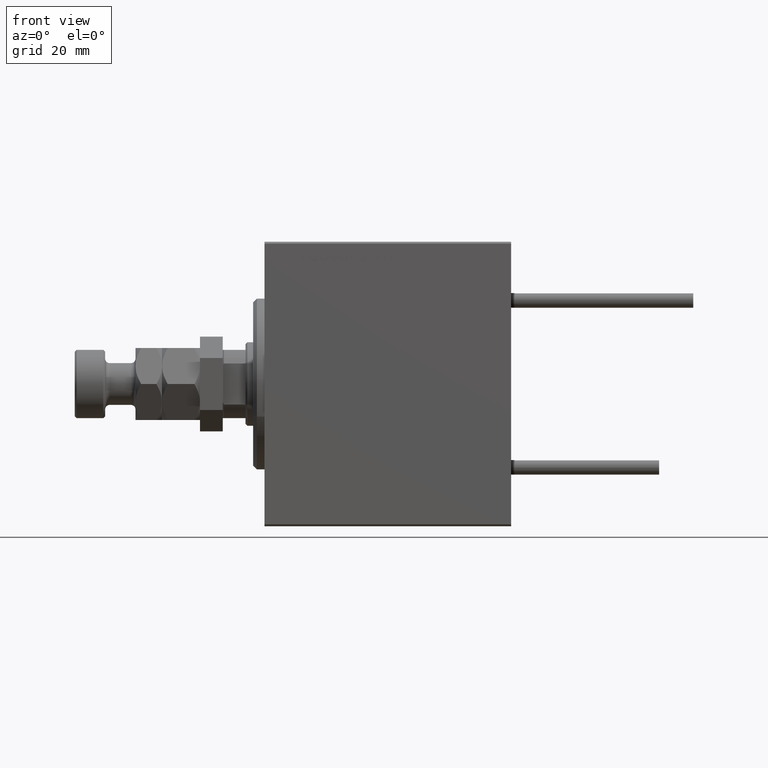
[diagram: clean part render]
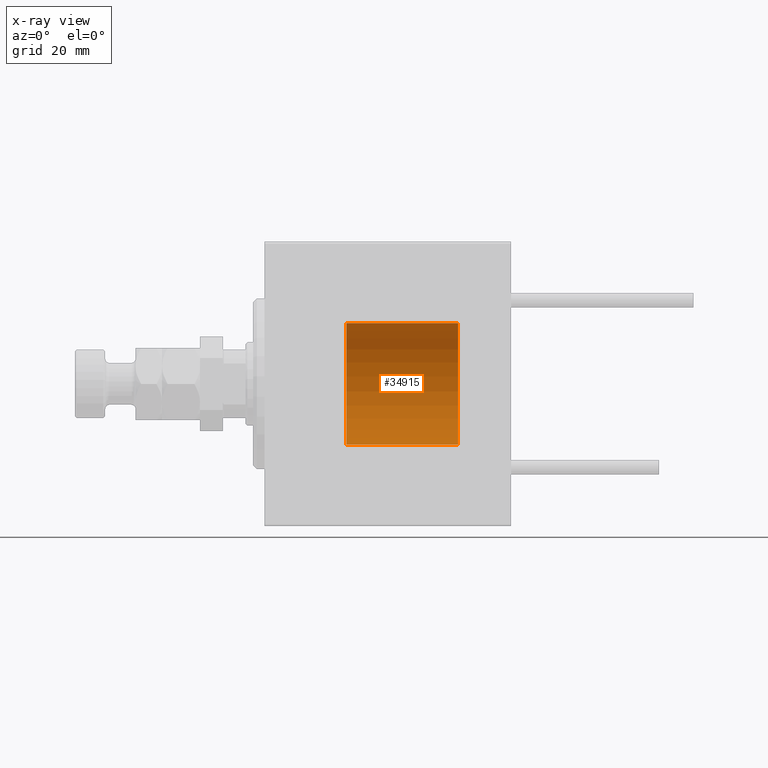
[diagram: x-ray — body ghosted, one internal face saturated and labeled with its STEP entity id]
A machine part, front view, then the same camera in x-ray: the body is ghosted and one INTERNAL B-rep face — a face not visible from any outside direction — is saturated and labeled: STEP entity #34915.
In plain terms, the highlighted cylindrical surface (partial cylindrical patch) has radius 16 mm, axis along (-1, -0, -0).
Its self-contained STEP definition (entity closure, byte-faithful):
#327 = CARTESIAN_POINT ( 'NONE',  ( 51.00000000000000000, 1.959434878635765131E-15, -16.00000000000000000 ) ) ;
#443 = DIRECTION ( 'NONE',  ( 0.000000000000000000, 0.000000000000000000, 1.000000000000000000 ) ) ;
#2130 = ORIENTED_EDGE ( 'NONE', *, *, #4479, .F. ) ;
#2985 = DIRECTION ( 'NONE',  ( 0.000000000000000000, 0.000000000000000000, 1.000000000000000000 ) ) ;
#3044 = CARTESIAN_POINT ( 'NONE',  ( 51.00000000000000000, 1.959434878635765131E-15, -16.00000000000000000 ) ) ;
#3851 = VECTOR ( 'NONE', #49975, 1000.000000000000000 ) ;
#4479 = EDGE_CURVE ( 'NONE', #4786, #16933, #25304, .T. ) ;
#4786 = VERTEX_POINT ( 'NONE', #29559 ) ;
#5709 = CARTESIAN_POINT ( 'NONE',  ( 21.60000000000000142, 0.000000000000000000, 16.00000000000000000 ) ) ;
#10088 = VERTEX_POINT ( 'NONE', #5709 ) ;
#10361 = EDGE_CURVE ( 'NONE', #4786, #10088, #27014, .T. ) ;
#11110 = CARTESIAN_POINT ( 'NONE',  ( 21.60000000000000142, 0.000000000000000000, 0.000000000000000000 ) ) ;
#11412 = LINE ( 'NONE', #3044, #24680 ) ;
#14196 = ORIENTED_EDGE ( 'NONE', *, *, #37259, .T. ) ;
#15760 = CARTESIAN_POINT ( 'NONE',  ( 51.00000000000000000, 0.000000000000000000, 0.000000000000000000 ) ) ;
#16018 = DIRECTION ( 'NONE',  ( 0.000000000000000000, 0.000000000000000000, 1.000000000000000000 ) ) ;
#16933 = VERTEX_POINT ( 'NONE', #327 ) ;
#22907 = CIRCLE ( 'NONE', #36189, 16.00000000000000000 ) ;
#23086 = DIRECTION ( 'NONE',  ( -1.000000000000000000, 0.000000000000000000, 0.000000000000000000 ) ) ;
#24230 = VERTEX_POINT ( 'NONE', #50734 ) ;
#24482 = EDGE_LOOP ( 'NONE', ( #29600, #2130, #33477, #14196 ) ) ;
#24680 = VECTOR ( 'NONE', #50770, 1000.000000000000000 ) ;
#25304 = CIRCLE ( 'NONE', #26132, 16.00000000000000000 ) ;
#26132 = AXIS2_PLACEMENT_3D ( 'NONE', #31742, #44007, #443 ) ;
#27014 = LINE ( 'NONE', #34574, #3851 ) ;
#29559 = CARTESIAN_POINT ( 'NONE',  ( 51.00000000000000000, 0.000000000000000000, 16.00000000000000000 ) ) ;
#29600 = ORIENTED_EDGE ( 'NONE', *, *, #44753, .F. ) ;
#31142 = CYLINDRICAL_SURFACE ( 'NONE', #45308, 16.00000000000000000 ) ;
#31742 = CARTESIAN_POINT ( 'NONE',  ( 51.00000000000000000, 0.000000000000000000, 0.000000000000000000 ) ) ;
#33477 = ORIENTED_EDGE ( 'NONE', *, *, #10361, .T. ) ;
#34574 = CARTESIAN_POINT ( 'NONE',  ( 51.00000000000000000, 0.000000000000000000, 16.00000000000000000 ) ) ;
#34915 = ADVANCED_FACE ( 'NONE', ( #46806 ), #31142, .F. ) ;
#36189 = AXIS2_PLACEMENT_3D ( 'NONE', #11110, #23086, #16018 ) ;
#37259 = EDGE_CURVE ( 'NONE', #10088, #24230, #22907, .T. ) ;
#44007 = DIRECTION ( 'NONE',  ( -1.000000000000000000, 0.000000000000000000, 0.000000000000000000 ) ) ;
#44753 = EDGE_CURVE ( 'NONE', #16933, #24230, #11412, .T. ) ;
#45308 = AXIS2_PLACEMENT_3D ( 'NONE', #15760, #47304, #2985 ) ;
#46806 = FACE_OUTER_BOUND ( 'NONE', #24482, .T. ) ;
#47304 = DIRECTION ( 'NONE',  ( -1.000000000000000000, -0.000000000000000000, -0.000000000000000000 ) ) ;
#49975 = DIRECTION ( 'NONE',  ( -1.000000000000000000, -0.000000000000000000, -0.000000000000000000 ) ) ;
#50734 = CARTESIAN_POINT ( 'NONE',  ( 21.60000000000000142, 1.959434878635765131E-15, -16.00000000000000000 ) ) ;
#50770 = DIRECTION ( 'NONE',  ( -1.000000000000000000, -0.000000000000000000, -0.000000000000000000 ) ) ;